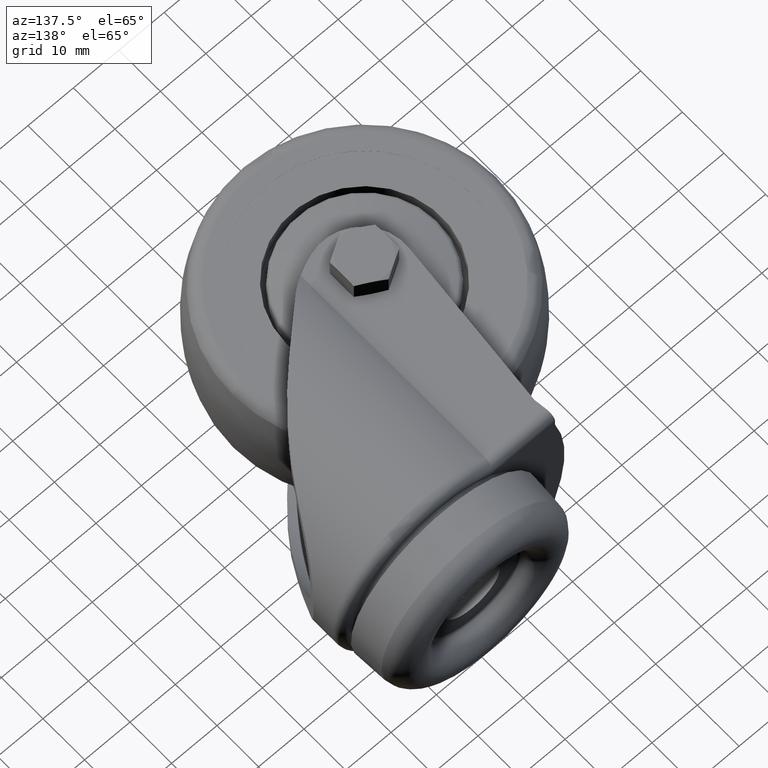
[diagram: clean part render]
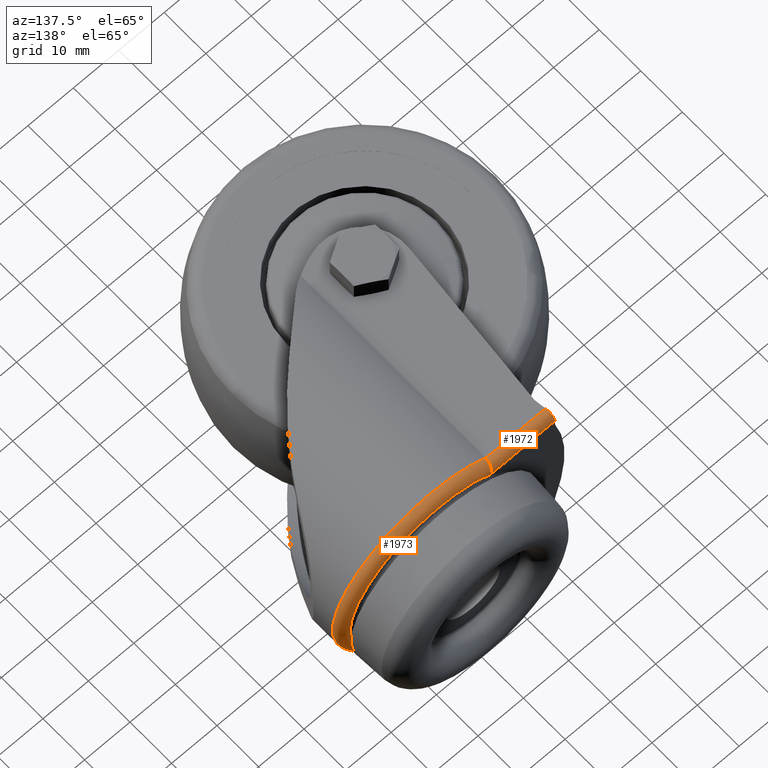
[diagram: same view with one multi-face feature highlighted, each face labeled with its STEP entity id]
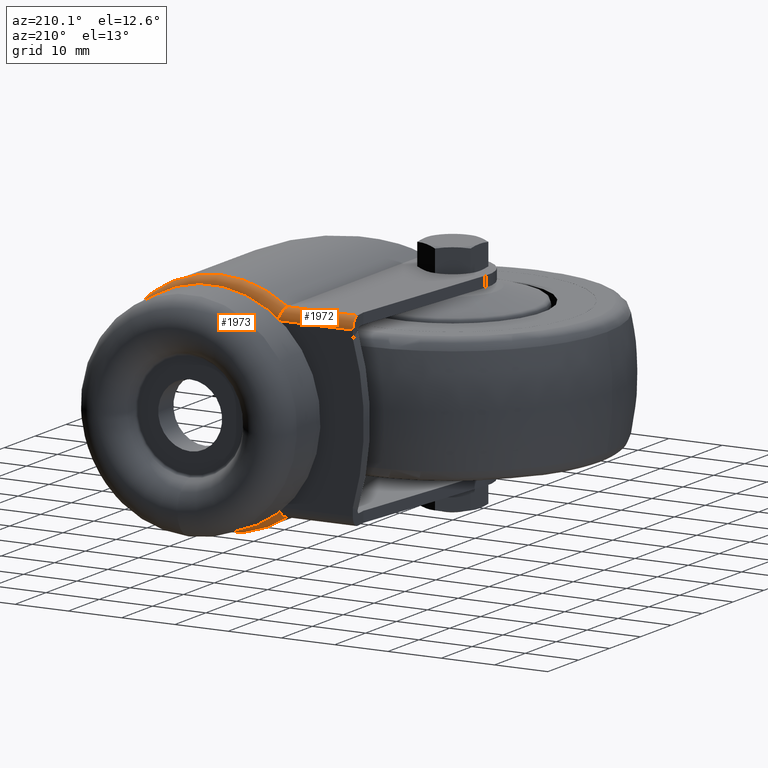
[diagram: same view with one multi-face feature highlighted, each face labeled with its STEP entity id]
A machine part, auxiliary view. The highlighted faces form ONE feature: a constant-radius fillet chain: 2 tangent blend faces with common blend radius 2 mm. The faces share edges in the B-rep.
A second angle (auxiliary view) of the same feature is appended — it is thin or edge-on in the first view.
Their STEP definitions:
[1] entity #1973 (Torus):
#42=B_SPLINE_CURVE_WITH_KNOTS('',3,(#3152,#3153,#3154,#3155,#3156,#3157,
#3158),.UNSPECIFIED.,.F.,.F.,(4,3,4),(0.0535543288731596,0.0535839052526173,
0.053613481632075),.UNSPECIFIED.);
#58=B_SPLINE_CURVE_WITH_KNOTS('',3,(#3377,#3378,#3379,#3380,#3381,#3382,
#3383,#3384,#3385,#3386,#3387,#3388,#3389,#3390),.UNSPECIFIED.,.F.,.F.,
(4,2,2,2,2,2,4),(0.322816096050483,0.397649244886409,0.474263881122935,
0.554677051712936,0.600033282214207,0.645632192100962,0.646304701485888),
 .UNSPECIFIED.);
#59=B_SPLINE_CURVE_WITH_KNOTS('',3,(#3394,#3395,#3396,#3397,#3398,#3399,
#3400,#3401,#3402,#3403,#3404,#3405,#3406,#3407),.UNSPECIFIED.,.F.,.F.,
(4,2,2,2,2,2,4),(-0.000672509384917449,0.,0.0455989098864941,0.0909551403874547,
0.171368310976907,0.247982947212912,0.322816096048326),.UNSPECIFIED.);
#172=ELLIPSE('',#2182,0.512092469382133,0.227470255085354);
#339=TOROIDAL_SURFACE('',#2181,19.4009002025912,2.);
#478=FACE_OUTER_BOUND('',#654,.T.);
#654=EDGE_LOOP('',(#1513,#1514,#1515,#1516,#1517,#1518));
#843=CIRCLE('',#2154,19.4009002025912);
#851=CIRCLE('',#2177,21.4);
#969=VERTEX_POINT('',#3149);
#970=VERTEX_POINT('',#3151);
#976=VERTEX_POINT('',#3171);
#977=VERTEX_POINT('',#3173);
#1003=VERTEX_POINT('',#3298);
#1009=VERTEX_POINT('',#3392);
#1155=EDGE_CURVE('',#969,#970,#42,.T.);
#1163=EDGE_CURVE('',#977,#976,#843,.T.);
#1198=EDGE_CURVE('',#1003,#969,#851,.T.);
#1208=EDGE_CURVE('',#970,#976,#58,.T.);
#1209=EDGE_CURVE('',#1009,#1003,#172,.T.);
#1210=EDGE_CURVE('',#977,#1009,#59,.T.);
#1513=ORIENTED_EDGE('',*,*,#1209,.F.);
#1514=ORIENTED_EDGE('',*,*,#1210,.F.);
#1515=ORIENTED_EDGE('',*,*,#1163,.T.);
#1516=ORIENTED_EDGE('',*,*,#1208,.F.);
#1517=ORIENTED_EDGE('',*,*,#1155,.F.);
#1518=ORIENTED_EDGE('',*,*,#1198,.F.);
#1973=ADVANCED_FACE('',(#478),#339,.T.);
#2154=AXIS2_PLACEMENT_3D('',#3174,#2528,#2529);
#2177=AXIS2_PLACEMENT_3D('',#3300,#2585,#2586);
#2181=AXIS2_PLACEMENT_3D('',#3391,#2595,#2596);
#2182=AXIS2_PLACEMENT_3D('',#3393,#2597,#2598);
#2528=DIRECTION('center_axis',(0.,-1.,0.));
#2529=DIRECTION('ref_axis',(0.,0.,-1.));
#2585=DIRECTION('center_axis',(0.,-1.,0.));
#2586=DIRECTION('ref_axis',(0.,0.,-1.));
#2595=DIRECTION('center_axis',(0.,-1.,0.));
#2596=DIRECTION('ref_axis',(0.,0.,-1.));
#2597=DIRECTION('center_axis',(8.52684693399985E-12,2.59269684531301E-13,
1.));
#2598=DIRECTION('ref_axis',(0.0262418376242717,-0.999655623681526,3.5420265502807E-14));
#3149=CARTESIAN_POINT('',(8.68293866216459,38.5399999999999,17.5));
#3151=CARTESIAN_POINT('',(8.68137469190384,38.6,17.5));
#3152=CARTESIAN_POINT('Ctrl Pts',(8.68293866216458,38.5399999999999,17.5));
#3153=CARTESIAN_POINT('Ctrl Pts',(8.68242059847188,38.5499348133541,17.5));
#3154=CARTESIAN_POINT('Ctrl Pts',(8.68202665818576,38.5599828481802,17.5));
#3155=CARTESIAN_POINT('Ctrl Pts',(8.68176554107677,38.5700024919062,17.5));
#3156=CARTESIAN_POINT('Ctrl Pts',(8.6815044239678,38.5800221356321,17.5));
#3157=CARTESIAN_POINT('Ctrl Pts',(8.68137469190378,38.5900212187712,17.5));
#3158=CARTESIAN_POINT('Ctrl Pts',(8.68137469190379,38.6,17.5));
#3171=CARTESIAN_POINT('',(9.33188409935422,40.6,15.5));
#3173=CARTESIAN_POINT('',(9.33188409935422,40.6,-15.5));
#3174=CARTESIAN_POINT('Origin',(21.,40.6,0.));
#3298=CARTESIAN_POINT('',(8.68293866216459,38.5399999999999,-17.5));
#3300=CARTESIAN_POINT('Origin',(21.,38.5399999999999,0.));
#3377=CARTESIAN_POINT('Ctrl Pts',(8.68137469190384,38.6,17.5));
#3378=CARTESIAN_POINT('Ctrl Pts',(8.68137469190384,38.848991949648,17.5));
#3379=CARTESIAN_POINT('Ctrl Pts',(8.69607198060915,39.0949856224179,17.4535109428798));
#3380=CARTESIAN_POINT('Ctrl Pts',(8.75379729465597,39.5616011027358,17.2718601534031));
#3381=CARTESIAN_POINT('Ctrl Pts',(8.79681910122644,39.776068090002,17.1367679858604));
#3382=CARTESIAN_POINT('Ctrl Pts',(8.9082951409065,40.1509394969933,16.7895919344406));
#3383=CARTESIAN_POINT('Ctrl Pts',(8.97677484963717,40.3043531832916,16.5776011628107));
#3384=CARTESIAN_POINT('Ctrl Pts',(9.09573605964698,40.47410460648,16.2132623890098));
#3385=CARTESIAN_POINT('Ctrl Pts',(9.14075527420614,40.520628974106,16.076098570616));
#3386=CARTESIAN_POINT('Ctrl Pts',(9.23375540150812,40.5834852644088,15.7944717052858));
#3387=CARTESIAN_POINT('Ctrl Pts',(9.28156645103604,40.599530105164,15.6505337569408));
#3388=CARTESIAN_POINT('Ctrl Pts',(9.330462603335,40.5999966099959,15.5042520796064));
#3389=CARTESIAN_POINT('Ctrl Pts',(9.33117332201083,40.6,15.502126030401));
#3390=CARTESIAN_POINT('Ctrl Pts',(9.33188409935421,40.6,15.5));
#3391=CARTESIAN_POINT('Origin',(21.,38.6,0.));
#3392=CARTESIAN_POINT('',(8.68137469190385,38.6,-17.5));
#3393=CARTESIAN_POINT('Origin',(8.90916334749815,38.5757466236135,-17.500000000002));
#3394=CARTESIAN_POINT('Ctrl Pts',(9.33188409935421,40.6,-15.5));
#3395=CARTESIAN_POINT('Ctrl Pts',(9.33117332201084,40.6,-15.502126030401));
#3396=CARTESIAN_POINT('Ctrl Pts',(9.330462603335,40.5999966099959,-15.5042520796064));
#3397=CARTESIAN_POINT('Ctrl Pts',(9.28156645103631,40.599530105164,-15.65053375694));
#3398=CARTESIAN_POINT('Ctrl Pts',(9.23375540150817,40.5834852644089,-15.7944717052856));
#3399=CARTESIAN_POINT('Ctrl Pts',(9.14075527420614,40.520628974106,-16.076098570616));
#3400=CARTESIAN_POINT('Ctrl Pts',(9.09573605964698,40.47410460648,-16.2132623890098));
#3401=CARTESIAN_POINT('Ctrl Pts',(8.97677484963717,40.3043531832916,-16.5776011628107));
#3402=CARTESIAN_POINT('Ctrl Pts',(8.9082951409065,40.1509394969933,-16.7895919344406));
#3403=CARTESIAN_POINT('Ctrl Pts',(8.79681910122643,39.776068090002,-17.1367679858604));
#3404=CARTESIAN_POINT('Ctrl Pts',(8.75379729465597,39.5616011027358,-17.2718601534031));
#3405=CARTESIAN_POINT('Ctrl Pts',(8.69607198060915,39.0949856224179,-17.4535109428798));
#3406=CARTESIAN_POINT('Ctrl Pts',(8.68137469190384,38.848991949648,-17.5));
#3407=CARTESIAN_POINT('Ctrl Pts',(8.68137469190384,38.6,-17.5));
[2] entity #1972 (Cylinder):
#58=B_SPLINE_CURVE_WITH_KNOTS('',3,(#3377,#3378,#3379,#3380,#3381,#3382,
#3383,#3384,#3385,#3386,#3387,#3388,#3389,#3390),.UNSPECIFIED.,.F.,.F.,
(4,2,2,2,2,2,4),(0.322816096050483,0.397649244886409,0.474263881122935,
0.554677051712936,0.600033282214207,0.645632192100962,0.646304701485888),
 .UNSPECIFIED.);
#67=LINE('',#3160,#117);
#71=LINE('',#3172,#121);
#117=VECTOR('',#2517,13.1887265204032);
#121=VECTOR('',#2527,14.0914427374374);
#171=ELLIPSE('',#2180,2.01583934746807,2.00000000000001);
#256=CYLINDRICAL_SURFACE('',#2179,2.00000000000001);
#477=FACE_OUTER_BOUND('',#653,.T.);
#653=EDGE_LOOP('',(#1509,#1510,#1511,#1512));
#970=VERTEX_POINT('',#3151);
#971=VERTEX_POINT('',#3159);
#975=VERTEX_POINT('',#3169);
#976=VERTEX_POINT('',#3171);
#1156=EDGE_CURVE('',#970,#971,#67,.T.);
#1162=EDGE_CURVE('',#976,#975,#71,.T.);
#1207=EDGE_CURVE('',#971,#975,#171,.T.);
#1208=EDGE_CURVE('',#970,#976,#58,.T.);
#1509=ORIENTED_EDGE('',*,*,#1207,.F.);
#1510=ORIENTED_EDGE('',*,*,#1156,.F.);
#1511=ORIENTED_EDGE('',*,*,#1208,.T.);
#1512=ORIENTED_EDGE('',*,*,#1162,.T.);
#1972=ADVANCED_FACE('',(#477),#256,.T.);
#2179=AXIS2_PLACEMENT_3D('',#3375,#2591,#2592);
#2180=AXIS2_PLACEMENT_3D('',#3376,#2593,#2594);
#2517=DIRECTION('',(-1.,0.,0.));
#2527=DIRECTION('',(-1.,0.,0.));
#2591=DIRECTION('center_axis',(1.,0.,0.));
#2592=DIRECTION('ref_axis',(0.,0.,1.));
#2593=DIRECTION('center_axis',(-0.99214255466937,-0.12511255418277,0.));
#2594=DIRECTION('ref_axis',(-0.12511255418277,0.99214255466937,0.));
#3151=CARTESIAN_POINT('',(8.68137469190384,38.6,17.5));
#3159=CARTESIAN_POINT('',(-4.50735182849937,38.6,17.5));
#3160=CARTESIAN_POINT('',(19.,38.6,17.5));
#3169=CARTESIAN_POINT('',(-4.75955863808323,40.6,15.5));
#3171=CARTESIAN_POINT('',(9.33188409935422,40.6,15.5));
#3172=CARTESIAN_POINT('',(19.,40.6,15.5));
#3375=CARTESIAN_POINT('Origin',(19.,38.6,15.5));
#3376=CARTESIAN_POINT('Origin',(-4.50735182849937,38.6,15.5));
#3377=CARTESIAN_POINT('Ctrl Pts',(8.68137469190384,38.6,17.5));
#3378=CARTESIAN_POINT('Ctrl Pts',(8.68137469190384,38.848991949648,17.5));
#3379=CARTESIAN_POINT('Ctrl Pts',(8.69607198060915,39.0949856224179,17.4535109428798));
#3380=CARTESIAN_POINT('Ctrl Pts',(8.75379729465597,39.5616011027358,17.2718601534031));
#3381=CARTESIAN_POINT('Ctrl Pts',(8.79681910122644,39.776068090002,17.1367679858604));
#3382=CARTESIAN_POINT('Ctrl Pts',(8.9082951409065,40.1509394969933,16.7895919344406));
#3383=CARTESIAN_POINT('Ctrl Pts',(8.97677484963717,40.3043531832916,16.5776011628107));
#3384=CARTESIAN_POINT('Ctrl Pts',(9.09573605964698,40.47410460648,16.2132623890098));
#3385=CARTESIAN_POINT('Ctrl Pts',(9.14075527420614,40.520628974106,16.076098570616));
#3386=CARTESIAN_POINT('Ctrl Pts',(9.23375540150812,40.5834852644088,15.7944717052858));
#3387=CARTESIAN_POINT('Ctrl Pts',(9.28156645103604,40.599530105164,15.6505337569408));
#3388=CARTESIAN_POINT('Ctrl Pts',(9.330462603335,40.5999966099959,15.5042520796064));
#3389=CARTESIAN_POINT('Ctrl Pts',(9.33117332201083,40.6,15.502126030401));
#3390=CARTESIAN_POINT('Ctrl Pts',(9.33188409935421,40.6,15.5));